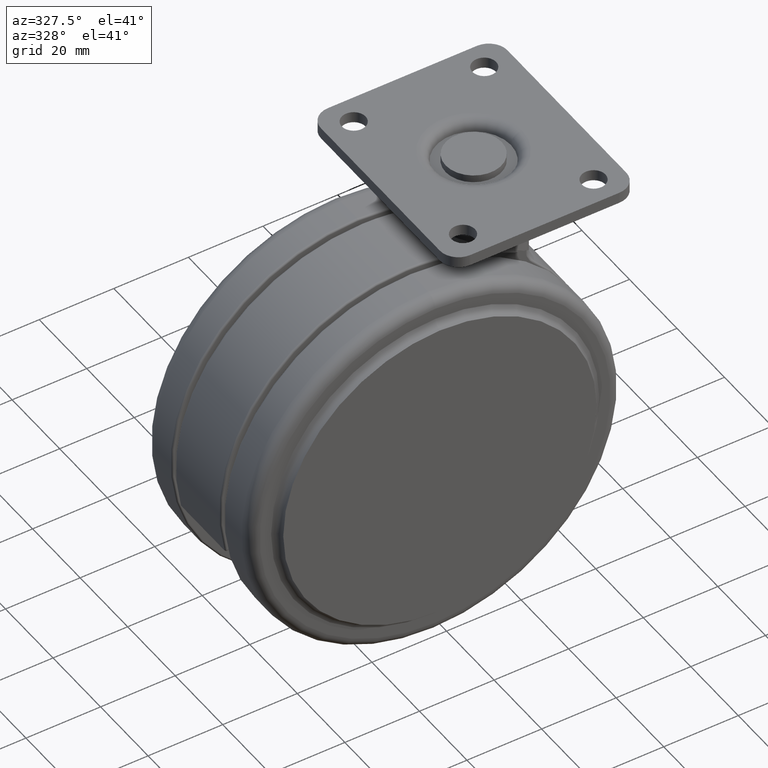
[diagram: clean part render]
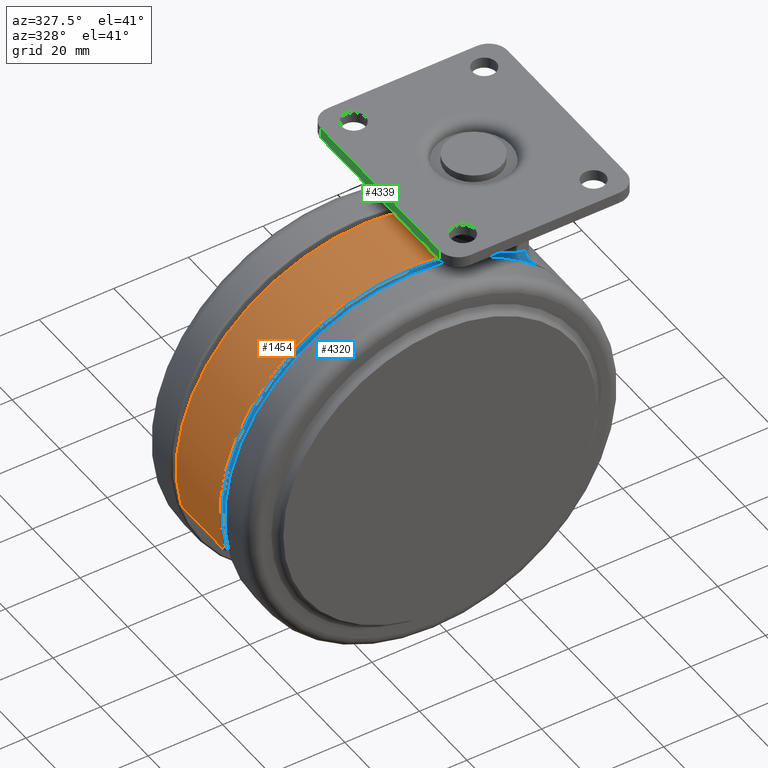
[diagram: same view with three faces highlighted in distinct colors, each labeled with its STEP entity id]
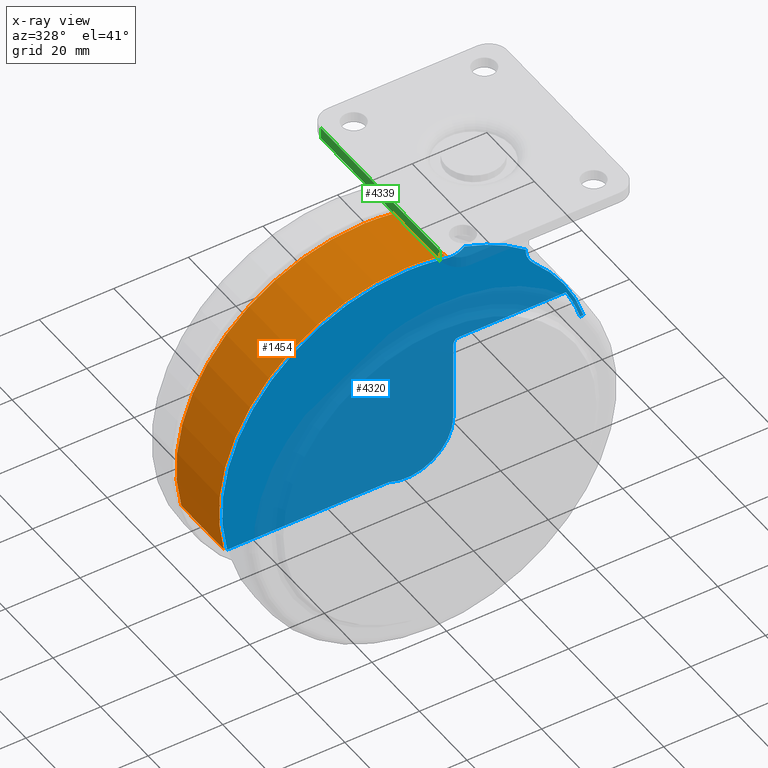
[diagram: x-ray of the same camera — body ghosted, the three highlighted faces saturated]
A machine part, auxiliary view with three faces highlighted in distinct colors.
The next image is the same camera in x-ray (body ghosted, the three faces saturated) — at least one of them is partly hidden behind the body in this view.
Their STEP definitions:

[orange] entity #1454 — the highlighted cylindrical surface (partial cylindrical patch) has radius 50 mm, axis along (0, -1, 0).
#141 = CARTESIAN_POINT ( 'NONE',  ( -15.05754743931497500, -5.480090249505247300, -4.305619938092127600 ) ) ;
#163 = CARTESIAN_POINT ( 'NONE',  ( -15.50401833692048100, 3.947490771882072600, -4.227025261565246200 ) ) ;
#246 = VERTEX_POINT ( 'NONE', #1388 ) ;
#541 = CARTESIAN_POINT ( 'NONE',  ( -24.00000000000000000, -9.000000000000000000, -53.50000000000000000 ) ) ;
#547 = CARTESIAN_POINT ( 'NONE',  ( -24.00000000000000000, -9.000000000000000000, -3.499999999999996000 ) ) ;
#579 = VERTEX_POINT ( 'NONE', #2033 ) ;
#586 = CARTESIAN_POINT ( 'NONE',  ( -15.50394217610509500, -3.947875178841895300, -4.227038109285412100 ) ) ;
#601 = CARTESIAN_POINT ( 'NONE',  ( -15.06078846981251300, 5.470396283528689500, -4.305037803309154800 ) ) ;
#626 = VERTEX_POINT ( 'NONE', #3543 ) ;
#662 = ORIENTED_EDGE ( 'NONE', *, *, #1676, .T. ) ;
#727 = EDGE_CURVE ( 'NONE', #1070, #3201, #1679, .T. ) ;
#942 = DIRECTION ( 'NONE',  ( 0.0000000000000000000, 0.0000000000000000000, 1.000000000000000000 ) ) ;
#986 = CARTESIAN_POINT ( 'NONE',  ( -15.75018177165870800, -2.773062423797003600, -4.185256193070487500 ) ) ;
#1006 = CARTESIAN_POINT ( 'NONE',  ( -14.10277180261416400, 7.642021384287514400, -4.488131617924796800 ) ) ;
#1037 = VERTEX_POINT ( 'NONE', #547 ) ;
#1070 = VERTEX_POINT ( 'NONE', #3442 ) ;
#1132 = B_SPLINE_CURVE_WITH_KNOTS ( 'NONE', 3,
 ( #1646, #3727, #4668, #2215, #5102, #2631, #141, #3052, #586, #3465, #986, #3882, #1386, #4274, #1820, #4690, #2235, #5120, #2655, #163, #3071, #601, #3485, #1006, #3901, #1412 ),
 .UNSPECIFIED., .F., .F.,
 ( 4, 2, 2, 2, 2, 2, 2, 2, 2, 2, 2, 2, 4 ),
 ( 0.0006158291584128928600, 0.001819163664838187300, 0.003022498171263481900, 0.005429167184114069800, 0.006632501690539365100, 0.007835836196964658700, 0.009039170703389953100, 0.01024250520981524700, 0.01264917422266583600, 0.01385250872909113100, 0.01505584323551642500, 0.01746251224836701400, 0.01986918126121760300 ),
 .UNSPECIFIED. ) ;
#1165 = DIRECTION ( 'NONE',  ( -0.0000000000000000000, -1.000000000000000000, -0.0000000000000000000 ) ) ;
#1306 = ORIENTED_EDGE ( 'NONE', *, *, #4150, .T. ) ;
#1386 = CARTESIAN_POINT ( 'NONE',  ( -15.90968894626868700, -1.581401476146360600, -4.158863872622996300 ) ) ;
#1388 = CARTESIAN_POINT ( 'NONE',  ( -13.26361270200834000, 8.999999999993280000, -4.666302743008369400 ) ) ;
#1412 = CARTESIAN_POINT ( 'NONE',  ( -13.26361270200834000, 8.999999999993280000, -4.666302743008369400 ) ) ;
#1445 = CARTESIAN_POINT ( 'NONE',  ( -24.00000000000000000, 990.5000000000000000, -53.50000000000000000 ) ) ;
#1454 = ADVANCED_FACE ( 'NONE', ( #2914 ), #4011, .T. ) ;
#1646 = CARTESIAN_POINT ( 'NONE',  ( -13.26361270200341900, -9.000000000000600400, -4.666302743009460100 ) ) ;
#1661 = EDGE_CURVE ( 'NONE', #579, #1037, #2121, .T. ) ;
#1676 = EDGE_CURVE ( 'NONE', #1037, #626, #5288, .T. ) ;
#1679 = CIRCLE ( 'NONE', #4901, 50.00000000000000000 ) ;
#1699 = CARTESIAN_POINT ( 'NONE',  ( -24.00000000000000000, 9.000000000000000000, -53.50000000000000000 ) ) ;
#1761 = DIRECTION ( 'NONE',  ( 0.0000000000000000000, 1.000000000000000000, 0.0000000000000000000 ) ) ;
#1820 = CARTESIAN_POINT ( 'NONE',  ( -15.98129808588531700, -0.3894342145353331700, -4.147184278489612900 ) ) ;
#1850 = CARTESIAN_POINT ( 'NONE',  ( -72.63193178671009800, 990.5000000000000000, -65.11616161616169100 ) ) ;
#1884 = DIRECTION ( 'NONE',  ( 0.0000000000000000000, -1.000000000000000000, 0.0000000000000000000 ) ) ;
#2033 = CARTESIAN_POINT ( 'NONE',  ( -72.63193178671009800, -9.000000000000000000, -65.11616161616169100 ) ) ;
#2040 = CARTESIAN_POINT ( 'NONE',  ( -72.63193178671009800, 9.000000000000000000, -65.11616161616169100 ) ) ;
#2051 = EDGE_CURVE ( 'NONE', #3201, #579, #3288, .T. ) ;
#2105 = DIRECTION ( 'NONE',  ( -8.881784197001252300E-015, 0.0000000000000000000, 1.000000000000000000 ) ) ;
#2121 = CIRCLE ( 'NONE', #2219, 50.00000000000000000 ) ;
#2215 = CARTESIAN_POINT ( 'NONE',  ( -14.08667595784944600, -7.640751553747281700, -4.492185714613752300 ) ) ;
#2219 = AXIS2_PLACEMENT_3D ( 'NONE', #4217, #1761, #4628 ) ;
#2235 = CARTESIAN_POINT ( 'NONE',  ( -15.92342614242173200, 1.590202679598598800, -4.156483141297779400 ) ) ;
#2306 = AXIS2_PLACEMENT_3D ( 'NONE', #1699, #4572, #2105 ) ;
#2496 = AXIS2_PLACEMENT_3D ( 'NONE', #541, #3420, #942 ) ;
#2631 = CARTESIAN_POINT ( 'NONE',  ( -14.77391288980654200, -6.218465899852599700, -4.357379519360479000 ) ) ;
#2636 = ORIENTED_EDGE ( 'NONE', *, *, #3782, .T. ) ;
#2637 = AXIS2_PLACEMENT_3D ( 'NONE', #1445, #1884, #3940 ) ;
#2646 = ORIENTED_EDGE ( 'NONE', *, *, #1661, .T. ) ;
#2655 = CARTESIAN_POINT ( 'NONE',  ( -15.67751123548614900, 3.167633265977949800, -4.197424765451110300 ) ) ;
#2731 = ORIENTED_EDGE ( 'NONE', *, *, #727, .T. ) ;
#2914 = FACE_OUTER_BOUND ( 'NONE', #5231, .T. ) ;
#3052 = CARTESIAN_POINT ( 'NONE',  ( -15.40232899502134200, -4.336272387655518500, -4.244607653993511100 ) ) ;
#3071 = CARTESIAN_POINT ( 'NONE',  ( -15.40341674238165700, 4.332128375583170800, -4.244419520488281500 ) ) ;
#3201 = VERTEX_POINT ( 'NONE', #2040 ) ;
#3288 = LINE ( 'NONE', #1850, #5083 ) ;
#3420 = DIRECTION ( 'NONE',  ( 0.0000000000000000000, 1.000000000000000000, 0.0000000000000000000 ) ) ;
#3442 = CARTESIAN_POINT ( 'NONE',  ( -24.00000000000000000, 9.000000000000000000, -3.499999999999996000 ) ) ;
#3465 = CARTESIAN_POINT ( 'NONE',  ( -15.67774890325102200, -3.166522839731176200, -4.197384362354175600 ) ) ;
#3485 = CARTESIAN_POINT ( 'NONE',  ( -14.77817236103594700, 6.208476528741792700, -4.356574566985759000 ) ) ;
#3514 = DIRECTION ( 'NONE',  ( 0.0000000000000000000, -1.000000000000000000, 0.0000000000000000000 ) ) ;
#3543 = CARTESIAN_POINT ( 'NONE',  ( -13.26361270200341900, -9.000000000000600400, -4.666302743009460100 ) ) ;
#3643 = CARTESIAN_POINT ( 'NONE',  ( -24.00000000000000000, 9.000000000000000000, -53.50000000000000000 ) ) ;
#3727 = CARTESIAN_POINT ( 'NONE',  ( -13.48586325825186600, -8.669671585443294900, -4.617439597617713600 ) ) ;
#3782 = EDGE_CURVE ( 'NONE', #246, #1070, #4947, .T. ) ;
#3882 = CARTESIAN_POINT ( 'NONE',  ( -15.86619444843353800, -1.980602377290267200, -4.165988762385521400 ) ) ;
#3901 = CARTESIAN_POINT ( 'NONE',  ( -13.70761073616828600, 8.340090890353801400, -4.568687057077244900 ) ) ;
#3940 = DIRECTION ( 'NONE',  ( 0.0000000000000000000, 0.0000000000000000000, -1.000000000000000000 ) ) ;
#4011 = CYLINDRICAL_SURFACE ( 'NONE', #2637, 50.00000000000000700 ) ;
#4061 = DIRECTION ( 'NONE',  ( 0.0000000000000000000, 0.0000000000000000000, 1.000000000000000000 ) ) ;
#4150 = EDGE_CURVE ( 'NONE', #626, #246, #1132, .T. ) ;
#4217 = CARTESIAN_POINT ( 'NONE',  ( -24.00000000000000000, -9.000000000000000000, -53.50000000000000000 ) ) ;
#4274 = CARTESIAN_POINT ( 'NONE',  ( -15.96714364877076900, -0.7863741049426203900, -4.149477549604488200 ) ) ;
#4572 = DIRECTION ( 'NONE',  ( -0.0000000000000000000, -1.000000000000000000, -0.0000000000000000000 ) ) ;
#4628 = DIRECTION ( 'NONE',  ( 0.0000000000000000000, 0.0000000000000000000, 1.000000000000000000 ) ) ;
#4668 = CARTESIAN_POINT ( 'NONE',  ( -13.69564899448356800, -8.330290572988825900, -4.572909294025042600 ) ) ;
#4690 = CARTESIAN_POINT ( 'NONE',  ( -15.98079565493698200, 0.7996944504169171100, -4.147265913758349900 ) ) ;
#4772 = ORIENTED_EDGE ( 'NONE', *, *, #2051, .T. ) ;
#4901 = AXIS2_PLACEMENT_3D ( 'NONE', #3643, #1165, #4061 ) ;
#4947 = CIRCLE ( 'NONE', #2306, 50.00000000000000000 ) ;
#5083 = VECTOR ( 'NONE', #3514, 1000.000000000000000 ) ;
#5102 = CARTESIAN_POINT ( 'NONE',  ( -14.26852028499708600, -7.289736765086877800, -4.455859062230997500 ) ) ;
#5120 = CARTESIAN_POINT ( 'NONE',  ( -15.75022019021855800, 2.772529738737577800, -4.185250092841294600 ) ) ;
#5231 = EDGE_LOOP ( 'NONE', ( #1306, #2636, #2731, #4772, #2646, #662 ) ) ;
#5288 = CIRCLE ( 'NONE', #2496, 50.00000000000000000 ) ;

[blue] entity #4320 — the highlighted planar face has unit normal (0, 1, 0).
#118 = CARTESIAN_POINT ( 'NONE',  ( -9.745562929346760900, -9.500000000000003600, -4.768707796044185300 ) ) ;
#121 = CARTESIAN_POINT ( 'NONE',  ( 0.0000000000000000000, -9.500000000000000000, -39.30000000000000400 ) ) ;
#134 = DIRECTION ( 'NONE',  ( -0.0000000000000000000, -1.000000000000000000, -0.0000000000000000000 ) ) ;
#152 = CIRCLE ( 'NONE', #4438, 1.500000000000001300 ) ;
#218 = CARTESIAN_POINT ( 'NONE',  ( 7.988753188157890200, -9.499999999999996400, -13.72342874876278200 ) ) ;
#278 = CIRCLE ( 'NONE', #850, 52.00000000000000000 ) ;
#311 = ORIENTED_EDGE ( 'NONE', *, *, #2371, .T. ) ;
#324 = ORIENTED_EDGE ( 'NONE', *, *, #4529, .T. ) ;
#326 = ORIENTED_EDGE ( 'NONE', *, *, #1911, .T. ) ;
#388 = LINE ( 'NONE', #121, #1212 ) ;
#390 = VERTEX_POINT ( 'NONE', #2933 ) ;
#439 = DIRECTION ( 'NONE',  ( 7.994117400814808400E-017, 0.0000000000000000000, 1.000000000000000000 ) ) ;
#458 = B_SPLINE_CURVE_WITH_KNOTS ( 'NONE', 3,
 ( #632, #1020, #1442, #4325, #1880, #4741, #2284, #5177, #2712, #218, #3124, #657, #3538, #1056 ),
 .UNSPECIFIED., .F., .F.,
 ( 4, 2, 2, 2, 2, 2, 4 ),
 ( 0.0000000000000000000, 0.001467077483048683700, 0.002934154966097367500, 0.003667693707621703100, 0.004401232449146039500, 0.005134771190670375100, 0.005868309932194711600 ),
 .UNSPECIFIED. ) ;
#467 = ORIENTED_EDGE ( 'NONE', *, *, #3331, .T. ) ;
#516 = DIRECTION ( 'NONE',  ( 0.0000000000000000000, 1.000000000000000000, 0.0000000000000000000 ) ) ;
#526 = EDGE_CURVE ( 'NONE', #5252, #5225, #4561, .T. ) ;
#553 = CARTESIAN_POINT ( 'NONE',  ( -10.35586465202991100, -9.500000000000003600, -5.010124611861654900 ) ) ;
#632 = CARTESIAN_POINT ( 'NONE',  ( 10.20116525422882100, -9.500000000000000000, -17.71550202597615000 ) ) ;
#657 = CARTESIAN_POINT ( 'NONE',  ( 7.929703315799398100, -9.500000000000001800, -12.99205185259942000 ) ) ;
#692 = DIRECTION ( 'NONE',  ( 1.000000000000000000, 0.0000000000000000000, 0.0000000000000000000 ) ) ;
#741 = CIRCLE ( 'NONE', #1061, 12.50000000000000400 ) ;
#761 = CARTESIAN_POINT ( 'NONE',  ( -72.14561246884299800, -9.500000000000000000, -65.00000000000000000 ) ) ;
#814 = CARTESIAN_POINT ( 'NONE',  ( -24.00000000000000000, -9.500000000000000000, -53.50000000000000000 ) ) ;
#850 = AXIS2_PLACEMENT_3D ( 'NONE', #814, #3704, #1218 ) ;
#908 = VERTEX_POINT ( 'NONE', #2480 ) ;
#957 = CARTESIAN_POINT ( 'NONE',  ( -10.98522312876672800, -9.500000000000003600, -5.174239219233415500 ) ) ;
#974 = EDGE_CURVE ( 'NONE', #5225, #3624, #3231, .T. ) ;
#994 = LINE ( 'NONE', #2997, #1125 ) ;
#1020 = CARTESIAN_POINT ( 'NONE',  ( 9.846276226187962200, -9.500000000000000000, -17.37631553511776500 ) ) ;
#1023 = AXIS2_PLACEMENT_3D ( 'NONE', #2048, #4942, #2465 ) ;
#1056 = CARTESIAN_POINT ( 'NONE',  ( 7.985776048856109800, -9.500000000000000000, -12.50109598352150000 ) ) ;
#1061 = AXIS2_PLACEMENT_3D ( 'NONE', #2622, #134, #3047 ) ;
#1073 = CARTESIAN_POINT ( 'NONE',  ( 0.0000000000000000000, -9.500000000000000000, 0.0000000000000000000 ) ) ;
#1125 = VECTOR ( 'NONE', #3407, 1000.000000000000000 ) ;
#1212 = VECTOR ( 'NONE', #3025, 1000.000000000000000 ) ;
#1218 = DIRECTION ( 'NONE',  ( 4.470248957324849400E-015, 0.0000000000000000000, 1.000000000000000000 ) ) ;
#1220 = EDGE_LOOP ( 'NONE', ( #311, #3618, #2206, #4289, #4766, #5291, #4178, #467, #4403, #1470, #326, #324, #1452 ) ) ;
#1244 = CARTESIAN_POINT ( 'NONE',  ( -11.50000000000000000, -9.500000000000000000, -31.80000000000000100 ) ) ;
#1255 = VECTOR ( 'NONE', #439, 1000.000000000000000 ) ;
#1350 = CARTESIAN_POINT ( 'NONE',  ( -11.63373392001659200, -9.500000000000003600, -5.267194849619119900 ) ) ;
#1436 = CARTESIAN_POINT ( 'NONE',  ( -24.00000000000000000, -9.500000000000000000, -53.50000000000000000 ) ) ;
#1442 = CARTESIAN_POINT ( 'NONE',  ( 9.527700149053856600, -9.500000000000000000, -17.00269713873884600 ) ) ;
#1452 = ORIENTED_EDGE ( 'NONE', *, *, #3017, .T. ) ;
#1470 = ORIENTED_EDGE ( 'NONE', *, *, #2016, .T. ) ;
#1527 = VERTEX_POINT ( 'NONE', #5210 ) ;
#1539 = VERTEX_POINT ( 'NONE', #3996 ) ;
#1723 = EDGE_CURVE ( 'NONE', #4066, #5252, #2199, .T. ) ;
#1786 = CARTESIAN_POINT ( 'NONE',  ( -12.50776526403549300, -9.500000000000001800, -5.290777963331809300 ) ) ;
#1868 = DIRECTION ( 'NONE',  ( 0.0000000000000000000, 0.0000000000000000000, 1.000000000000000000 ) ) ;
#1880 = CARTESIAN_POINT ( 'NONE',  ( 8.717209998805488500, -9.500000000000001800, -15.78506281210859500 ) ) ;
#1911 = EDGE_CURVE ( 'NONE', #5036, #2584, #388, .T. ) ;
#2016 = EDGE_CURVE ( 'NONE', #908, #5036, #3028, .T. ) ;
#2048 = CARTESIAN_POINT ( 'NONE',  ( -24.00000000000000000, -9.500000000000000000, -53.50000000000000000 ) ) ;
#2083 = CARTESIAN_POINT ( 'NONE',  ( 22.45797805921845100, -9.500000000000000000, -39.30000000000000400 ) ) ;
#2120 = CARTESIAN_POINT ( 'NONE',  ( -24.00000000000000000, -9.500000000000000000, -53.50000000000000000 ) ) ;
#2185 = CARTESIAN_POINT ( 'NONE',  ( -8.520874296048269500, -9.500000000000000000, -3.857310030163985100 ) ) ;
#2199 = B_SPLINE_CURVE_WITH_KNOTS ( 'NONE', 3,
 ( #2185, #5056, #2588, #5073, #2603, #118, #3021, #553, #3435, #957, #3851, #1350, #4244, #1786, #4654, #2202 ),
 .UNSPECIFIED., .F., .F.,
 ( 4, 2, 2, 2, 2, 2, 2, 4 ),
 ( 0.0000000000000000000, 0.0006621730412021041800, 0.001324346082404208400, 0.001986519123606312200, 0.002648692164808416700, 0.003310865206010520800, 0.003973038247212624400, 0.005297384329616837800 ),
 .UNSPECIFIED. ) ;
#2202 = CARTESIAN_POINT ( 'NONE',  ( -13.37097657498334000, -9.500000000000000000, -5.154639715579370400 ) ) ;
#2206 = ORIENTED_EDGE ( 'NONE', *, *, #526, .T. ) ;
#2266 = DIRECTION ( 'NONE',  ( 0.0000000000000000000, 1.000000000000000000, 0.0000000000000000000 ) ) ;
#2284 = CARTESIAN_POINT ( 'NONE',  ( 8.318486157944546400, -9.500000000000000000, -14.89979391272247300 ) ) ;
#2344 = LINE ( 'NONE', #4286, #3319 ) ;
#2362 = LINE ( 'NONE', #3321, #1255 ) ;
#2371 = EDGE_CURVE ( 'NONE', #1527, #4066, #278, .T. ) ;
#2465 = DIRECTION ( 'NONE',  ( 2.663413821701764400E-015, 0.0000000000000000000, 1.000000000000000000 ) ) ;
#2480 = CARTESIAN_POINT ( 'NONE',  ( 18.68188989900545100, -9.500000000000000000, -30.30000000000000100 ) ) ;
#2538 = DIRECTION ( 'NONE',  ( 3.574581708073420500E-015, 0.0000000000000000000, 1.000000000000000000 ) ) ;
#2584 = VERTEX_POINT ( 'NONE', #5063 ) ;
#2588 = CARTESIAN_POINT ( 'NONE',  ( -8.827389336922149000, -9.500000000000000000, -4.176876077913657800 ) ) ;
#2603 = CARTESIAN_POINT ( 'NONE',  ( -9.358859541261207200, -9.500000000000001800, -4.561340676704841000 ) ) ;
#2622 = CARTESIAN_POINT ( 'NONE',  ( -24.00000000000000000, -9.500000000000000000, -53.50000000000000000 ) ) ;
#2644 = CARTESIAN_POINT ( 'NONE',  ( -24.00000000000000000, -9.500000000000000000, -3.999999999999996400 ) ) ;
#2712 = CARTESIAN_POINT ( 'NONE',  ( 8.090612348200888700, -9.500000000000001800, -14.20015037160986900 ) ) ;
#2748 = PLANE ( 'NONE',  #4580 ) ;
#2865 = VERTEX_POINT ( 'NONE', #3886 ) ;
#2933 = CARTESIAN_POINT ( 'NONE',  ( -10.00000000000000000, -9.500000000000000000, -30.30000000000000100 ) ) ;
#2953 = EDGE_CURVE ( 'NONE', #390, #908, #2344, .T. ) ;
#2986 = CARTESIAN_POINT ( 'NONE',  ( -10.00000000000000000, -9.500000000000000000, -31.80000000000000100 ) ) ;
#2997 = CARTESIAN_POINT ( 'NONE',  ( 0.0000000000000000000, -9.500000000000000000, -65.00000000000000000 ) ) ;
#3017 = EDGE_CURVE ( 'NONE', #2865, #1527, #458, .T. ) ;
#3021 = CARTESIAN_POINT ( 'NONE',  ( -9.947652821871066900, -9.500000000000001800, -4.858505840350299600 ) ) ;
#3025 = DIRECTION ( 'NONE',  ( 1.000000000000000000, 0.0000000000000000000, 0.0000000000000000000 ) ) ;
#3028 = CIRCLE ( 'NONE', #4065, 48.57966370149989600 ) ;
#3047 = DIRECTION ( 'NONE',  ( 0.0000000000000000000, 0.0000000000000000000, 1.000000000000000000 ) ) ;
#3083 = DIRECTION ( 'NONE',  ( 1.000000000000000000, 0.0000000000000000000, 0.0000000000000000000 ) ) ;
#3124 = CARTESIAN_POINT ( 'NONE',  ( 7.953927613093939400, -9.500000000000000000, -13.48226860658645200 ) ) ;
#3160 = DIRECTION ( 'NONE',  ( -0.0000000000000000000, 1.000000000000000000, 0.0000000000000000000 ) ) ;
#3231 = CIRCLE ( 'NONE', #4314, 49.50000000000000000 ) ;
#3282 = EDGE_CURVE ( 'NONE', #1539, #4162, #2362, .T. ) ;
#3319 = VECTOR ( 'NONE', #3083, 1000.000000000000000 ) ;
#3321 = CARTESIAN_POINT ( 'NONE',  ( -11.50000000000000000, -9.500000000000000000, 9.193235010937080000E-016 ) ) ;
#3327 = CIRCLE ( 'NONE', #3945, 49.50000000000000000 ) ;
#3331 = EDGE_CURVE ( 'NONE', #4162, #390, #152, .T. ) ;
#3395 = DIRECTION ( 'NONE',  ( 0.0000000000000000000, 0.0000000000000000000, 1.000000000000000000 ) ) ;
#3407 = DIRECTION ( 'NONE',  ( 1.000000000000000000, 0.0000000000000000000, 0.0000000000000000000 ) ) ;
#3435 = CARTESIAN_POINT ( 'NONE',  ( -10.56351883129081800, -9.500000000000001800, -5.072750690239038500 ) ) ;
#3538 = CARTESIAN_POINT ( 'NONE',  ( 7.940629531041134100, -9.500000000000003600, -12.74418278004847200 ) ) ;
#3618 = ORIENTED_EDGE ( 'NONE', *, *, #1723, .T. ) ;
#3624 = VERTEX_POINT ( 'NONE', #761 ) ;
#3704 = DIRECTION ( 'NONE',  ( -0.0000000000000000000, -1.000000000000000000, -0.0000000000000000000 ) ) ;
#3759 = CARTESIAN_POINT ( 'NONE',  ( -28.89897948556630100, -9.500000000000000000, -65.00000000000000000 ) ) ;
#3825 = VERTEX_POINT ( 'NONE', #3759 ) ;
#3851 = CARTESIAN_POINT ( 'NONE',  ( -11.19928082808172900, -9.500000000000001800, -5.213073502846346400 ) ) ;
#3886 = CARTESIAN_POINT ( 'NONE',  ( 10.20116525422882100, -9.500000000000000000, -17.71550202597615000 ) ) ;
#3945 = AXIS2_PLACEMENT_3D ( 'NONE', #2120, #5012, #2538 ) ;
#3996 = CARTESIAN_POINT ( 'NONE',  ( -11.50000000000000000, -9.500000000000000000, -53.50000000000000000 ) ) ;
#4065 = AXIS2_PLACEMENT_3D ( 'NONE', #4720, #2266, #5151 ) ;
#4066 = VERTEX_POINT ( 'NONE', #4920 ) ;
#4162 = VERTEX_POINT ( 'NONE', #1244 ) ;
#4165 = CARTESIAN_POINT ( 'NONE',  ( -13.37097657498334000, -9.500000000000000000, -5.154639715579370400 ) ) ;
#4178 = ORIENTED_EDGE ( 'NONE', *, *, #3282, .T. ) ;
#4219 = FACE_OUTER_BOUND ( 'NONE', #1220, .T. ) ;
#4244 = CARTESIAN_POINT ( 'NONE',  ( -11.85374595298794800, -9.500000000000001800, -5.282246225955297800 ) ) ;
#4286 = CARTESIAN_POINT ( 'NONE',  ( 0.0000000000000000000, -9.500000000000000000, -30.30000000000000100 ) ) ;
#4289 = ORIENTED_EDGE ( 'NONE', *, *, #974, .T. ) ;
#4314 = AXIS2_PLACEMENT_3D ( 'NONE', #1436, #4319, #1868 ) ;
#4319 = DIRECTION ( 'NONE',  ( -0.0000000000000000000, -1.000000000000000000, -0.0000000000000000000 ) ) ;
#4320 = ADVANCED_FACE ( 'NONE', ( #4219 ), #2748, .F. ) ;
#4325 = CARTESIAN_POINT ( 'NONE',  ( 8.961575845616465600, -9.500000000000001800, -16.20433362514277700 ) ) ;
#4403 = ORIENTED_EDGE ( 'NONE', *, *, #2953, .T. ) ;
#4438 = AXIS2_PLACEMENT_3D ( 'NONE', #2986, #516, #3395 ) ;
#4529 = EDGE_CURVE ( 'NONE', #2584, #2865, #3327, .T. ) ;
#4561 = CIRCLE ( 'NONE', #1023, 49.50000000000000000 ) ;
#4580 = AXIS2_PLACEMENT_3D ( 'NONE', #1073, #3160, #692 ) ;
#4643 = EDGE_CURVE ( 'NONE', #3624, #3825, #994, .T. ) ;
#4654 = CARTESIAN_POINT ( 'NONE',  ( -12.94095284100597900, -9.500000000000000000, -5.249183066065614700 ) ) ;
#4688 = EDGE_CURVE ( 'NONE', #3825, #1539, #741, .T. ) ;
#4720 = CARTESIAN_POINT ( 'NONE',  ( -24.00000000000000000, -9.500000000000000000, -53.50000000000000000 ) ) ;
#4741 = CARTESIAN_POINT ( 'NONE',  ( 8.410555921836818900, -9.500000000000000000, -15.12506246448047900 ) ) ;
#4766 = ORIENTED_EDGE ( 'NONE', *, *, #4643, .T. ) ;
#4920 = CARTESIAN_POINT ( 'NONE',  ( -8.520874296048269500, -9.500000000000000000, -3.857310030163985100 ) ) ;
#4942 = DIRECTION ( 'NONE',  ( -0.0000000000000000000, -1.000000000000000000, -0.0000000000000000000 ) ) ;
#5012 = DIRECTION ( 'NONE',  ( -0.0000000000000000000, -1.000000000000000000, -0.0000000000000000000 ) ) ;
#5036 = VERTEX_POINT ( 'NONE', #2083 ) ;
#5056 = CARTESIAN_POINT ( 'NONE',  ( -8.664268608767031300, -9.500000000000001800, -4.025705945230935600 ) ) ;
#5063 = CARTESIAN_POINT ( 'NONE',  ( 23.41951075243175100, -9.500000000000000000, -39.30000000000000400 ) ) ;
#5073 = CARTESIAN_POINT ( 'NONE',  ( -9.174394366319873500, -9.500000000000001800, -4.444229189866439000 ) ) ;
#5151 = DIRECTION ( 'NONE',  ( 0.0000000000000000000, 0.0000000000000000000, 1.000000000000000000 ) ) ;
#5177 = CARTESIAN_POINT ( 'NONE',  ( 8.158274938074232100, -9.500000000000001800, -14.43683450882220500 ) ) ;
#5210 = CARTESIAN_POINT ( 'NONE',  ( 7.985776048856109800, -9.500000000000000000, -12.50109598352150000 ) ) ;
#5225 = VERTEX_POINT ( 'NONE', #2644 ) ;
#5252 = VERTEX_POINT ( 'NONE', #4165 ) ;
#5291 = ORIENTED_EDGE ( 'NONE', *, *, #4688, .T. ) ;

[green] entity #4339 — the highlighted planar face has unit normal (1, 0, 0).
#413 = CARTESIAN_POINT ( 'NONE',  ( -25.00000000000000000, 24.99999999999689800, 1010.999999999999900 ) ) ;
#433 = CARTESIAN_POINT ( 'NONE',  ( -25.00000000000000000, -25.00000000000000000, 1010.999999999999900 ) ) ;
#440 = DIRECTION ( 'NONE',  ( -0.0000000000000000000, -1.000000000000000000, -0.0000000000000000000 ) ) ;
#493 = DIRECTION ( 'NONE',  ( 0.0000000000000000000, 0.0000000000000000000, -1.000000000000000000 ) ) ;
#560 = DIRECTION ( 'NONE',  ( -0.0000000000000000000, -1.000000000000000000, -0.0000000000000000000 ) ) ;
#598 = EDGE_CURVE ( 'NONE', #4784, #3018, #2116, .T. ) ;
#652 = LINE ( 'NONE', #3325, #4629 ) ;
#664 = CARTESIAN_POINT ( 'NONE',  ( -25.00000000000000000, -25.00000000000000000, 11.00000000000011900 ) ) ;
#1018 = VECTOR ( 'NONE', #4121, 1000.000000000000000 ) ;
#1062 = EDGE_CURVE ( 'NONE', #3018, #1512, #3814, .T. ) ;
#1111 = EDGE_CURVE ( 'NONE', #4784, #2717, #652, .T. ) ;
#1504 = PLANE ( 'NONE',  #5140 ) ;
#1512 = VERTEX_POINT ( 'NONE', #664 ) ;
#1924 = DIRECTION ( 'NONE',  ( 0.0000000000000000000, 0.0000000000000000000, -1.000000000000000000 ) ) ;
#2116 = LINE ( 'NONE', #413, #1018 ) ;
#2231 = ORIENTED_EDGE ( 'NONE', *, *, #2787, .F. ) ;
#2366 = ORIENTED_EDGE ( 'NONE', *, *, #1111, .F. ) ;
#2717 = VERTEX_POINT ( 'NONE', #3298 ) ;
#2720 = VECTOR ( 'NONE', #560, 1000.000000000000000 ) ;
#2765 = CARTESIAN_POINT ( 'NONE',  ( -25.00000000000000000, 24.99999999999689800, 14.00000000000000000 ) ) ;
#2787 = EDGE_CURVE ( 'NONE', #2717, #1512, #4469, .T. ) ;
#2889 = VECTOR ( 'NONE', #493, 1000.000000000000000 ) ;
#3018 = VERTEX_POINT ( 'NONE', #4727 ) ;
#3030 = CARTESIAN_POINT ( 'NONE',  ( -25.00000000000000000, 25.00000000000000000, 11.00000000000011900 ) ) ;
#3238 = EDGE_LOOP ( 'NONE', ( #4771, #2231, #2366, #3281 ) ) ;
#3281 = ORIENTED_EDGE ( 'NONE', *, *, #598, .T. ) ;
#3298 = CARTESIAN_POINT ( 'NONE',  ( -25.00000000000000000, -25.00000000000000000, 14.00000000000000000 ) ) ;
#3325 = CARTESIAN_POINT ( 'NONE',  ( -25.00000000000000000, 25.00000000000000000, 14.00000000000000000 ) ) ;
#3575 = CARTESIAN_POINT ( 'NONE',  ( -25.00000000000000000, 25.00000000000000000, 1010.999999999999900 ) ) ;
#3814 = LINE ( 'NONE', #3030, #2720 ) ;
#3983 = FACE_OUTER_BOUND ( 'NONE', #3238, .T. ) ;
#4121 = DIRECTION ( 'NONE',  ( 0.0000000000000000000, 0.0000000000000000000, -1.000000000000000000 ) ) ;
#4339 = ADVANCED_FACE ( 'NONE', ( #3983 ), #1504, .F. ) ;
#4383 = DIRECTION ( 'NONE',  ( 1.000000000000000000, 0.0000000000000000000, 0.0000000000000000000 ) ) ;
#4469 = LINE ( 'NONE', #433, #2889 ) ;
#4629 = VECTOR ( 'NONE', #440, 1000.000000000000000 ) ;
#4727 = CARTESIAN_POINT ( 'NONE',  ( -25.00000000000000000, 24.99999999999689800, 11.00000000000011900 ) ) ;
#4771 = ORIENTED_EDGE ( 'NONE', *, *, #1062, .T. ) ;
#4784 = VERTEX_POINT ( 'NONE', #2765 ) ;
#5140 = AXIS2_PLACEMENT_3D ( 'NONE', #3575, #4383, #1924 ) ;